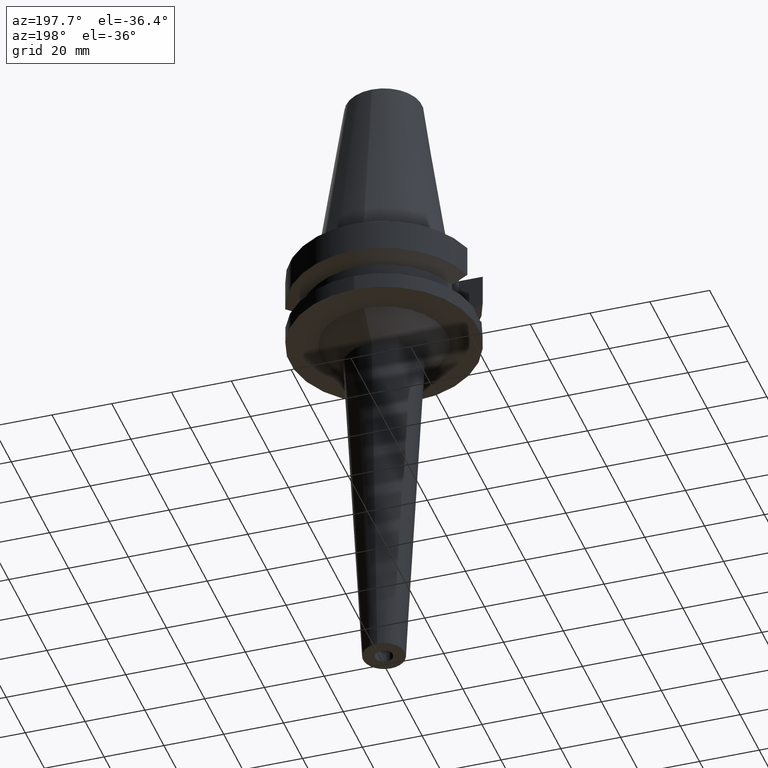
[diagram: clean part render]
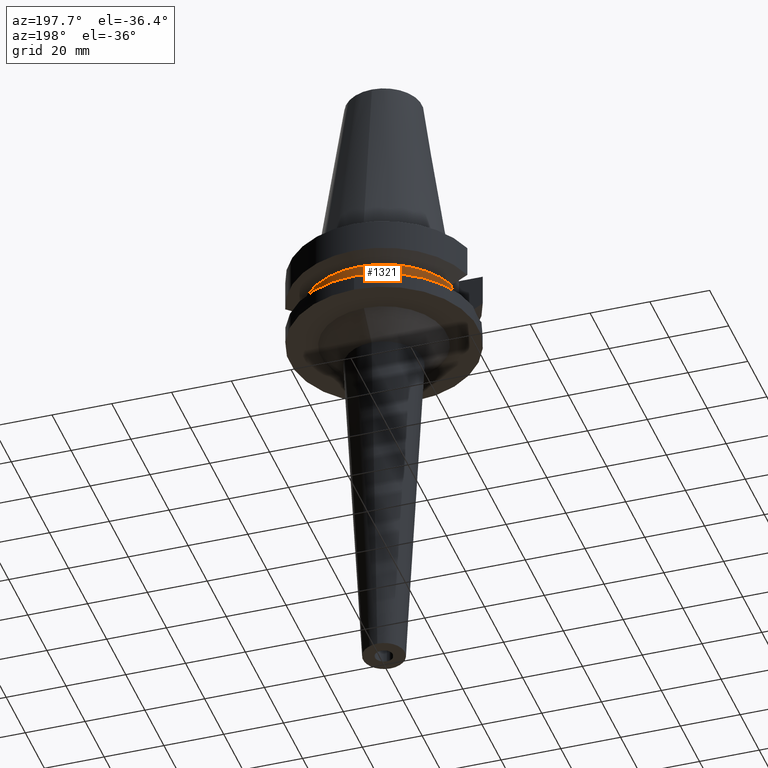
[diagram: same view with one face highlighted and labeled with its STEP entity id]
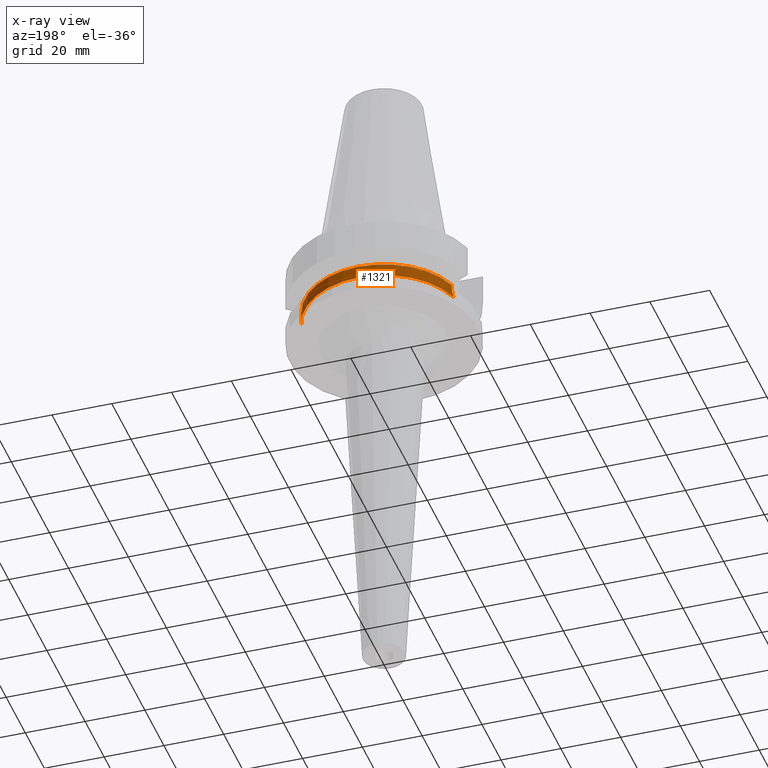
[diagram: x-ray of the same camera — body ghosted, the highlighted face saturated]
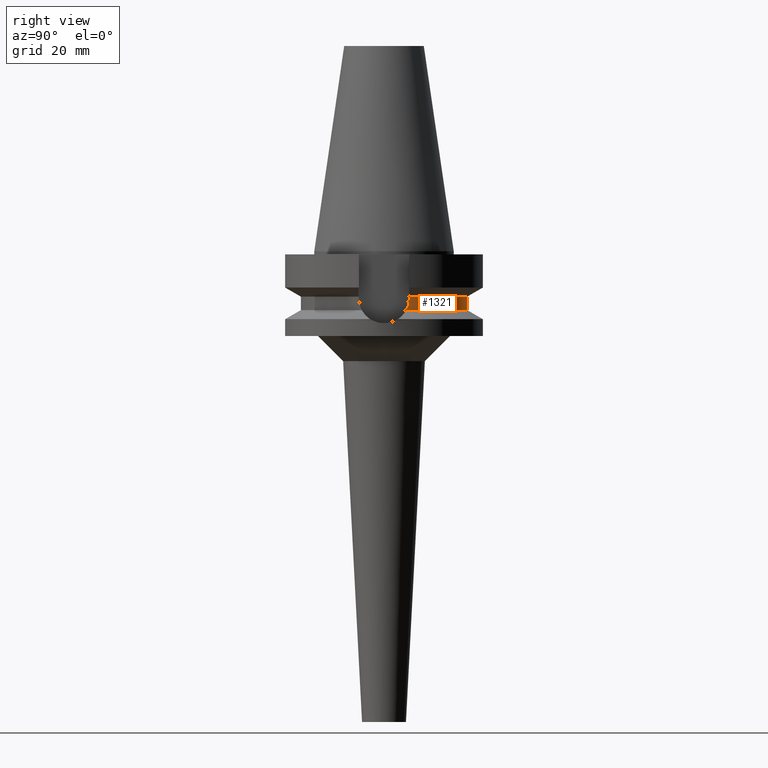
[diagram: same view with one face highlighted and labeled with its STEP entity id]
A machine part, auxiliary view. The second image highlights one B-rep face of the part: STEP entity #1321.
The next image is the same camera in x-ray: the body ghosted, the highlighted face saturated — about 0% of this face is hidden behind the body in this view.
A second angle (right view) of the same face is appended — the face is thin or edge-on in the first view.
In plain terms, the highlighted cylindrical surface (partial cylindrical patch) has radius 26.5 mm, axis along (0, 0, -1).
Its self-contained STEP definition (entity closure, byte-faithful):
#354=DIRECTION('',(-1.016224662221E-6,-3.187251312399E-6,-9.999999999944E-1));
#355=VECTOR('',#354,4.977551234249E-1);
#356=CARTESIAN_POINT('',(-2.524772216375E1,8.050001586471E0,-1.445224487658E1));
#357=LINE('',#356,#355);
#361=CARTESIAN_POINT('',(-2.524772266958E1,8.05E0,-1.495E1));
#362=CARTESIAN_POINT('',(-2.524772266958E1,8.05E0,-1.538861586984E1));
#363=CARTESIAN_POINT('',(-2.527037418675E1,7.979497389410E0,-1.625503182733E1));
#364=CARTESIAN_POINT('',(-2.536988390551E1,7.660352558552E0,-1.753923229568E1));
#365=CARTESIAN_POINT('',(-2.547274343126E1,7.310121622165E0,-1.835103685506E1));
#366=CARTESIAN_POINT('',(-2.553175183775E1,7.097862220093E0,-1.874774300139E1));
#371=CARTESIAN_POINT('',(2.553175183775E1,7.097862220093E0,-1.874774300139E1));
#372=CARTESIAN_POINT('',(2.547273572370E1,7.310149347073E0,-1.835098503808E1));
#373=CARTESIAN_POINT('',(2.536986948417E1,7.660400052925E0,-1.753910233397E1));
#374=CARTESIAN_POINT('',(2.527036794818E1,7.979516786549E0,-1.625489344526E1));
#375=CARTESIAN_POINT('',(2.524772266958E1,8.05E0,-1.538855632562E1));
#376=CARTESIAN_POINT('',(2.524772266958E1,8.05E0,-1.495E1));
#381=DIRECTION('',(2.936344683099E-6,-9.209448786822E-6,9.999999999533E-1));
#382=VECTOR('',#381,4.977079766036E-1);
#383=CARTESIAN_POINT('',(2.524772266958E1,8.05E0,-1.495E1));
#384=LINE('',#383,#382);
#398=CARTESIAN_POINT('',(0.E0,1.065333950388E-14,-1.445225699861E1));
#399=DIRECTION('',(0.E0,0.E0,-1.E0));
#400=DIRECTION('',(-9.527442516822E-1,3.037735849057E-1,0.E0));
#401=AXIS2_PLACEMENT_3D('',#398,#399,#400);
#406=CARTESIAN_POINT('',(0.E0,1.065333950388E-14,-1.445225699861E1));
#407=DIRECTION('',(0.E0,0.E0,-1.E0));
#408=DIRECTION('',(0.E0,1.E0,0.E0));
#409=AXIS2_PLACEMENT_3D('',#406,#407,#408);
#551=CARTESIAN_POINT('',(-2.553175183775E1,7.097862220093E0,-1.874774300139E1));
#587=CARTESIAN_POINT('',(0.E0,0.E0,-1.874774300139E1));
#588=DIRECTION('',(0.E0,0.E0,1.E0));
#589=DIRECTION('',(9.634623335001E-1,2.678438573620E-1,0.E0));
#590=AXIS2_PLACEMENT_3D('',#587,#588,#589);
#595=CARTESIAN_POINT('',(0.E0,0.E0,-1.874774300139E1));
#596=DIRECTION('',(0.E0,0.E0,1.E0));
#597=DIRECTION('',(0.E0,1.E0,0.E0));
#598=AXIS2_PLACEMENT_3D('',#595,#596,#597);
#983=CARTESIAN_POINT('',(2.524772266958E1,8.05E0,-1.495E1));
#984=VERTEX_POINT('',#983);
#985=VERTEX_POINT('',#371);
#990=VERTEX_POINT('',#551);
#992=CARTESIAN_POINT('',(0.E0,2.65E1,-1.874774300139E1));
#993=VERTEX_POINT('',#992);
#994=VERTEX_POINT('',#361);
#1009=CARTESIAN_POINT('',(-2.524772216375E1,8.050001586471E0,
-1.445224487658E1));
#1010=VERTEX_POINT('',#1009);
#1011=CARTESIAN_POINT('',(2.524772413102E1,8.049995416384E0,-1.445229202342E1));
#1012=VERTEX_POINT('',#1011);
#1013=CARTESIAN_POINT('',(0.E0,2.65E1,-1.445225699861E1));
#1014=VERTEX_POINT('',#1013);
#1299=CARTESIAN_POINT('',(0.E0,2.157460266058E-14,7.617E1));
#1300=DIRECTION('',(0.E0,0.E0,-1.E0));
#1301=DIRECTION('',(0.E0,-1.E0,0.E0));
#1302=AXIS2_PLACEMENT_3D('',#1299,#1300,#1301);
#1303=CYLINDRICAL_SURFACE('',#1302,2.65E1);
#1305=ORIENTED_EDGE('',*,*,#1304,.T.);
#1307=ORIENTED_EDGE('',*,*,#1306,.T.);
#1309=ORIENTED_EDGE('',*,*,#1308,.F.);
#1311=ORIENTED_EDGE('',*,*,#1310,.F.);
#1313=ORIENTED_EDGE('',*,*,#1312,.T.);
#1314=ORIENTED_EDGE('',*,*,#1286,.T.);
#1316=ORIENTED_EDGE('',*,*,#1315,.F.);
#1318=ORIENTED_EDGE('',*,*,#1317,.F.);
#1319=EDGE_LOOP('',(#1305,#1307,#1309,#1311,#1313,#1314,#1316,#1318));
#1320=FACE_OUTER_BOUND('',#1319,.F.);
#367=B_SPLINE_CURVE_WITH_KNOTS('',3,(#361,#362,#363,#364,#365,#366),
.UNSPECIFIED.,.F.,.F.,(4,1,1,4),(0.E0,3.333333333333E-1,6.666666666667E-1,1.E0),
.UNSPECIFIED.);
#377=B_SPLINE_CURVE_WITH_KNOTS('',3,(#371,#372,#373,#374,#375,#376),
.UNSPECIFIED.,.F.,.F.,(4,1,1,4),(0.E0,3.333333333333E-1,6.666666666667E-1,1.E0),
.UNSPECIFIED.);
#402=CIRCLE('',#401,2.65E1);
#410=CIRCLE('',#409,2.65E1);
#591=CIRCLE('',#590,2.65E1);
#599=CIRCLE('',#598,2.65E1);
#1286=EDGE_CURVE('',#984,#1012,#384,.T.);
#1304=EDGE_CURVE('',#1010,#994,#357,.T.);
#1306=EDGE_CURVE('',#994,#990,#367,.T.);
#1308=EDGE_CURVE('',#993,#990,#599,.T.);
#1310=EDGE_CURVE('',#985,#993,#591,.T.);
#1312=EDGE_CURVE('',#985,#984,#377,.T.);
#1315=EDGE_CURVE('',#1014,#1012,#410,.T.);
#1317=EDGE_CURVE('',#1010,#1014,#402,.T.);
#1321=ADVANCED_FACE('',(#1320),#1303,.T.);